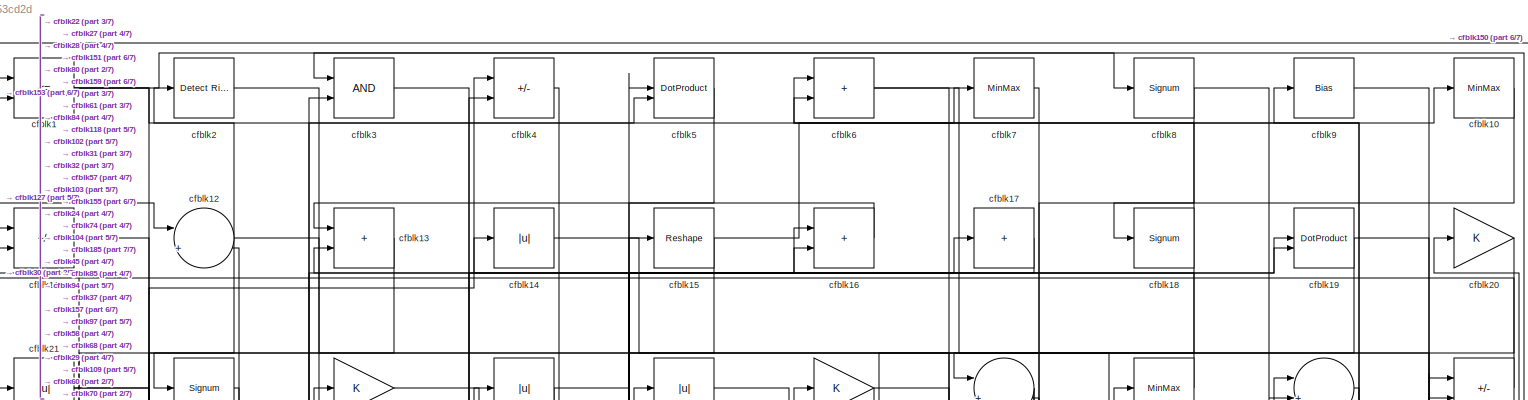
[diagram: root canvas - part 1/7, full width, top band]
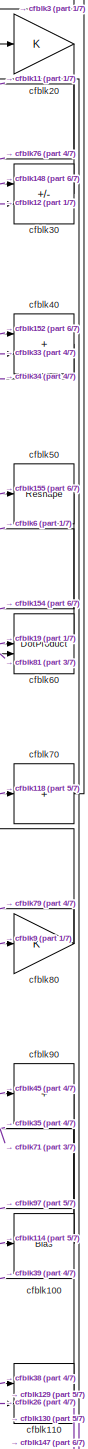
[diagram: root canvas - part 2/7, top right region]
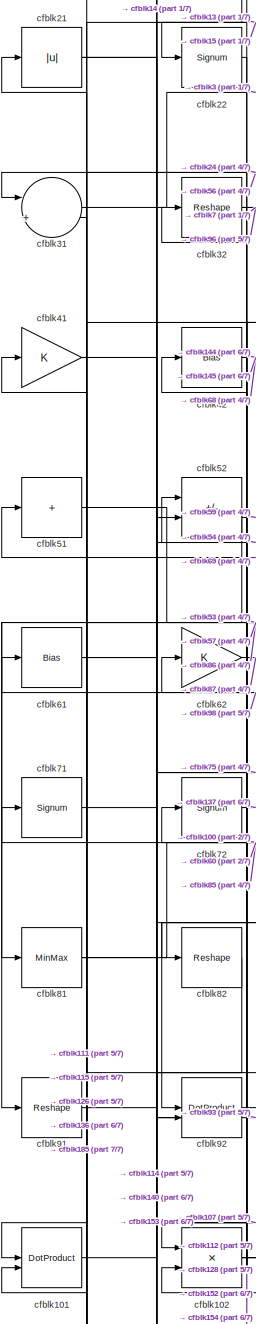
[diagram: root canvas - part 3/7, middle left region]
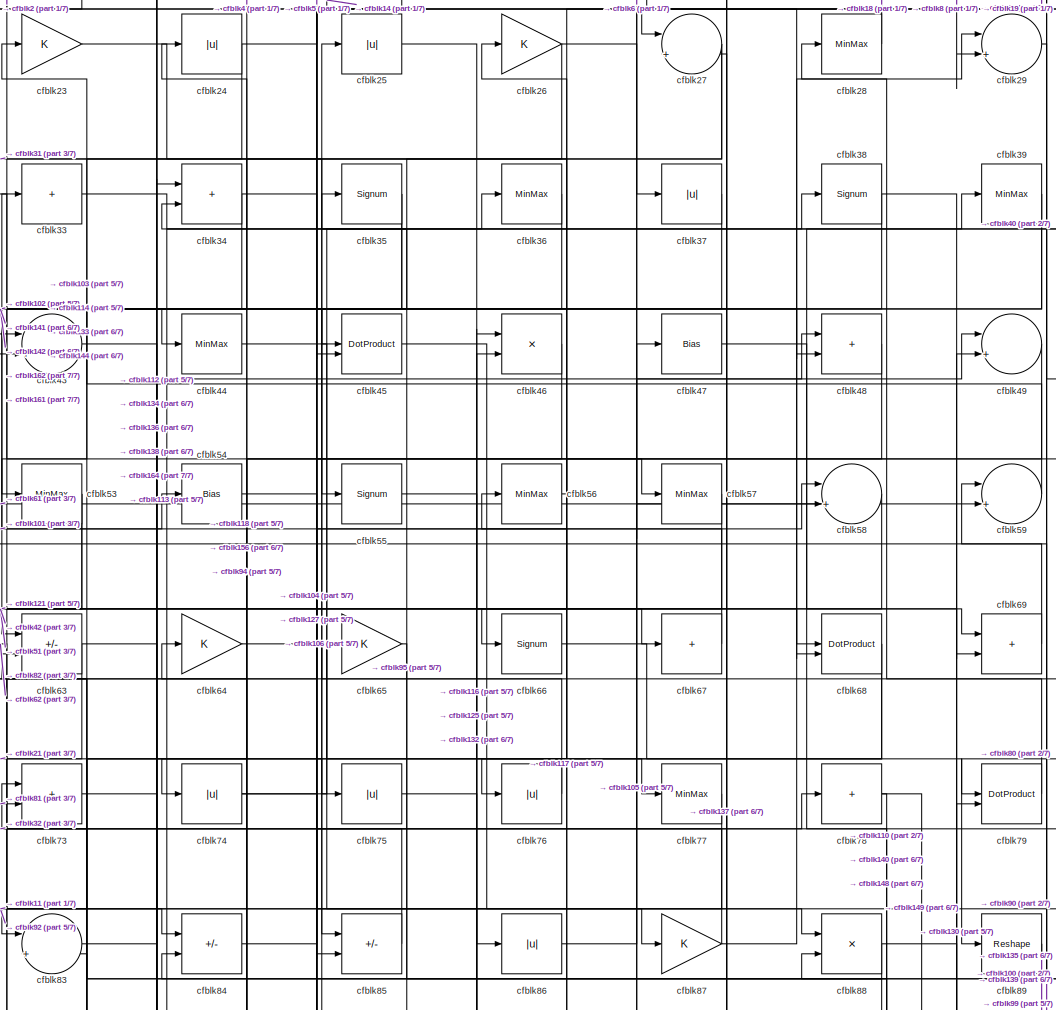
[diagram: root canvas - part 4/7, top center region]
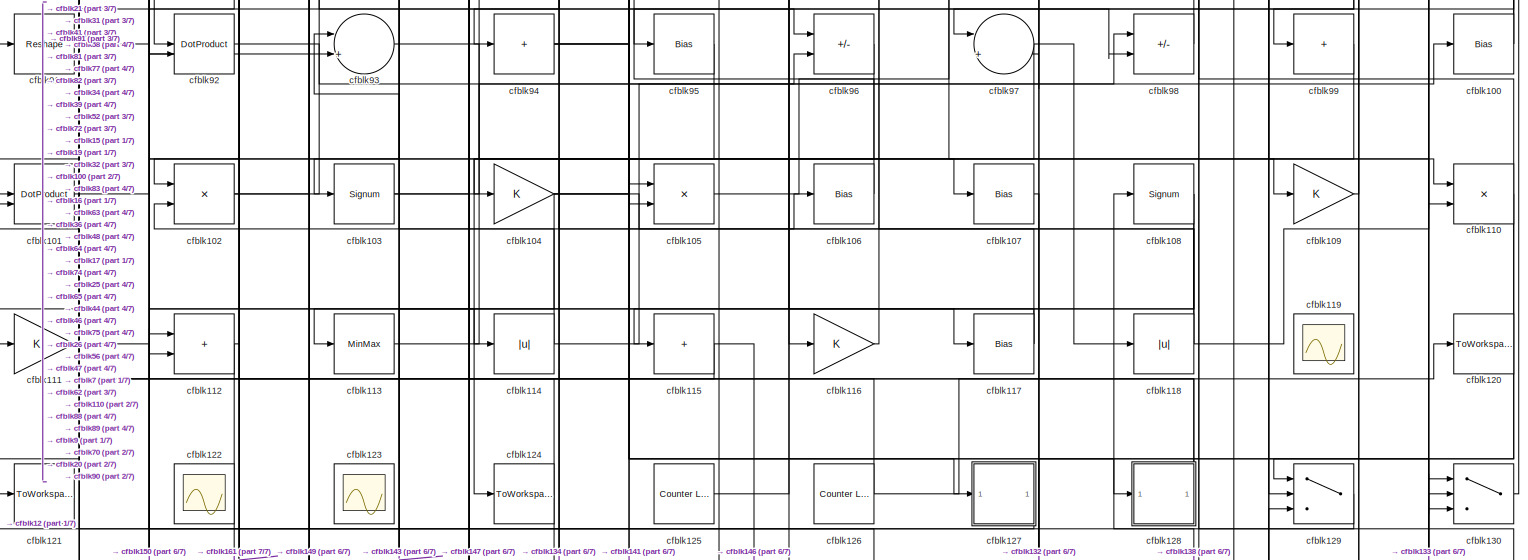
[diagram: root canvas - part 5/7, full width, middle band]
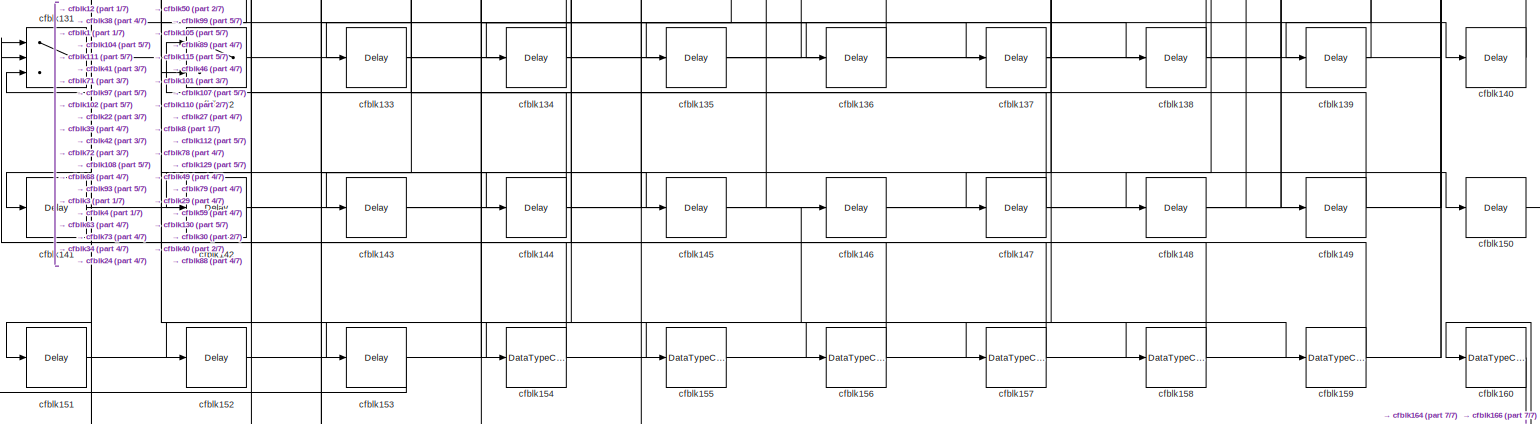
[diagram: root canvas - part 6/7, full width, bottom band]
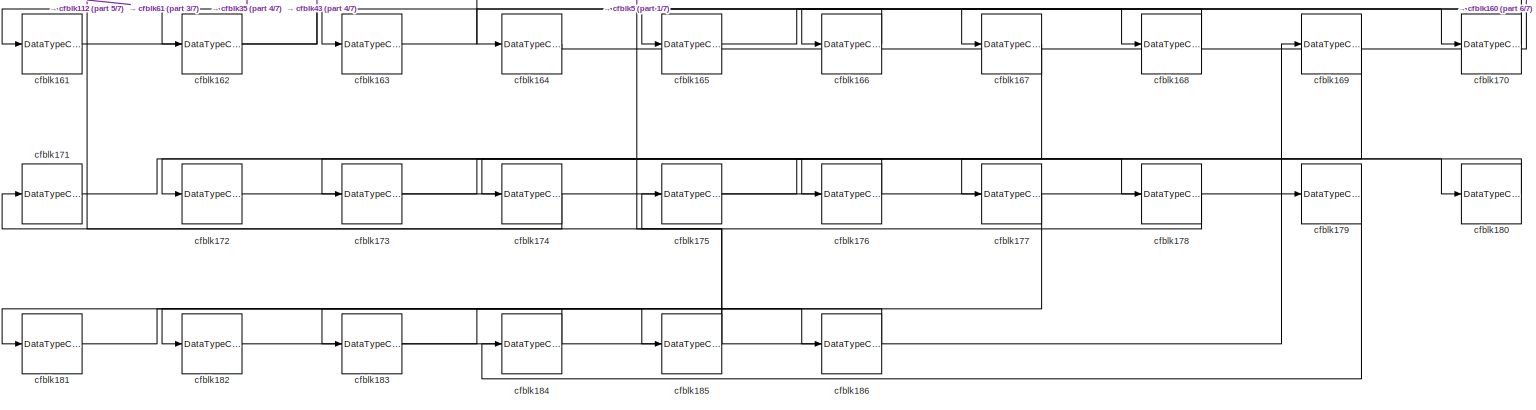
[diagram: root canvas - part 7/7, full width, bottom band]
MODEL slx_8042b253cd2d
KIND model
CONFIG AbsTol = auto
CONFIG EnableMultiTasking = off
CONFIG FixedStep = auto
CONFIG MaxStep = auto
CONFIG MinStep = auto
CONFIG RelTol = 1e-3
CONFIG SampleTimeConstraint = Unconstrained
CONFIG SolverName = VariableStepAuto
CONFIG StartTime = 0.0
CONFIG StopTime = 10.0
BLOCK [RelationalOperator] cfblk1
  InputSameDT = off
  Operator = <=
  OutDataTypeStr = boolean
BLOCK [MinMax] cfblk10
BLOCK [Bias] cfblk100
  Bias = 0.0
  SaturateOnIntegerOverflow = off
BLOCK [DotProduct] cfblk101
  OutDataTypeStr = Inherit: Inherit via internal rule
BLOCK [Product] cfblk102
  Inputs = */
  RndMeth = Zero
  SaturateOnIntegerOverflow = on
BLOCK [Signum] cfblk103
BLOCK [Gain] cfblk104
BLOCK [Product] cfblk105
  Inputs = */
  RndMeth = Zero
  SaturateOnIntegerOverflow = on
BLOCK [Bias] cfblk106
  Bias = 0.0
  SaturateOnIntegerOverflow = off
BLOCK [Bias] cfblk107
  Bias = 0.0
  SaturateOnIntegerOverflow = off
BLOCK [Signum] cfblk108
BLOCK [Gain] cfblk109
BLOCK [Sum] cfblk11
  IconShape = rectangular
  Inputs = +-
BLOCK [Product] cfblk110
  Inputs = */
  RndMeth = Zero
  SaturateOnIntegerOverflow = on
BLOCK [Gain] cfblk111
BLOCK [Sum] cfblk112
  IconShape = rectangular
BLOCK [MinMax] cfblk113
BLOCK [Abs] cfblk114
  SaturateOnIntegerOverflow = off
BLOCK [Sum] cfblk115
  IconShape = rectangular
  Inputs = +
BLOCK [Gain] cfblk116
BLOCK [Bias] cfblk117
  Bias = 0.0
  SaturateOnIntegerOverflow = off
BLOCK [Abs] cfblk118
  SaturateOnIntegerOverflow = off
BLOCK [Scope] cfblk119
  Floating = on
  NumInputPorts = 1
  ScopeSpecificationString = Simulink.scopes.TimeScopeBlockCfg('CurrentConfiguration', extmgr.ConfigurationSet(extmgr.Configuration('Core','General UI',true,'FigureColor',[0.156862745098039 0.156862745098039 0.156862745098039]),extmgr.Configuration('Core','Source UI',true),extmgr.Configuration('Sources','WiredSimulink',true,'DataLoggingVariableName','ScopeData1','DataLoggingSaveFormat','StructureWithTime','DataLoggingLimitDat...<+2713ch>  <repeated x3 — deduplicated; at blocks: cfblk119, cfblk122, cfblk123>
BLOCK [Sum] cfblk12
  Inputs = |++
BLOCK [ToWorkspace] cfblk120
  MaxDataPoints = inf
  SampleTime = -1
  SaveFormat = Timeseries
  VariableName = simout
BLOCK [ToWorkspace] cfblk121
  MaxDataPoints = inf
  SampleTime = -1
  SaveFormat = Timeseries
  VariableName = simout
BLOCK [Scope] cfblk122
  Floating = on
  NumInputPorts = 1
BLOCK [Scope] cfblk123
  Floating = on
  NumInputPorts = 1
BLOCK [ToWorkspace] cfblk124
  MaxDataPoints = inf
  SampleTime = -1
  SaveFormat = Timeseries
  VariableName = simout
BLOCK [Reference] cfblk125  REF=hdlsllib/Sources/Counter
Limited
  SourceBlock = hdlsllib/Sources/Counter\nLimited
  SourceType = Counter Limited
BLOCK [Reference] cfblk126  REF=hdlsllib/Sources/Counter
Limited
  SourceBlock = hdlsllib/Sources/Counter\nLimited
  SourceType = Counter Limited
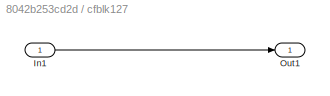
BLOCK [SubSystem] cfblk127
  LibrarySourceBlock = hdlsllib/Ports &\nSubsystems/Subsystem
BLOCK [Inport] cfblk127/In1
BLOCK [Outport] cfblk127/Out1
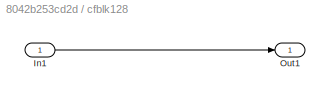
BLOCK [SubSystem] cfblk128
  LibrarySourceBlock = hdlsllib/Ports &\nSubsystems/Subsystem
BLOCK [Inport] cfblk128/In1
BLOCK [Outport] cfblk128/Out1
BLOCK [Switch] cfblk129
  InputSameDT = off
  SaturateOnIntegerOverflow = off
BLOCK [Sum] cfblk13
  IconShape = rectangular
BLOCK [Switch] cfblk130
  InputSameDT = off
  SaturateOnIntegerOverflow = off
BLOCK [Switch] cfblk131
  InputSameDT = off
  SaturateOnIntegerOverflow = off
BLOCK [Switch] cfblk132
  InputSameDT = off
  SaturateOnIntegerOverflow = off
BLOCK [Delay] cfblk133
  InputPortMap = u0
  SampleTime = 1
BLOCK [Delay] cfblk134
  InputPortMap = u0
  SampleTime = 1
BLOCK [Delay] cfblk135
  InputPortMap = u0
  SampleTime = 1
BLOCK [Delay] cfblk136
  InputPortMap = u0
  SampleTime = 1
BLOCK [Delay] cfblk137
  InputPortMap = u0
  SampleTime = 1
BLOCK [Delay] cfblk138
  InputPortMap = u0
  SampleTime = 1
BLOCK [Delay] cfblk139
  InputPortMap = u0
  SampleTime = 1
BLOCK [Abs] cfblk14
  SaturateOnIntegerOverflow = off
BLOCK [Delay] cfblk140
  InputPortMap = u0
  SampleTime = 1
BLOCK [Delay] cfblk141
  InputPortMap = u0
  SampleTime = 1
BLOCK [Delay] cfblk142
  InputPortMap = u0
  SampleTime = 1
BLOCK [Delay] cfblk143
  InputPortMap = u0
  SampleTime = 1
BLOCK [Delay] cfblk144
  InputPortMap = u0
  SampleTime = 1
BLOCK [Delay] cfblk145
  InputPortMap = u0
  SampleTime = 1
BLOCK [Delay] cfblk146
  InputPortMap = u0
  SampleTime = 1
BLOCK [Delay] cfblk147
  InputPortMap = u0
  SampleTime = 1
BLOCK [Delay] cfblk148
  InputPortMap = u0
  SampleTime = 1
BLOCK [Delay] cfblk149
  InputPortMap = u0
  SampleTime = 1
BLOCK [Reshape] cfblk15
BLOCK [Delay] cfblk150
  InputPortMap = u0
  SampleTime = 1
BLOCK [Delay] cfblk151
  InputPortMap = u0
  SampleTime = 1
BLOCK [Delay] cfblk152
  InputPortMap = u0
  SampleTime = 1
BLOCK [Delay] cfblk153
  InputPortMap = u0
  SampleTime = 1
BLOCK [DataTypeConversion] cfblk154
  OutDataTypeStr = uint8
  RndMeth = Floor
  SaturateOnIntegerOverflow = off
BLOCK [DataTypeConversion] cfblk155
  OutDataTypeStr = uint8
  RndMeth = Floor
  SaturateOnIntegerOverflow = off
BLOCK [DataTypeConversion] cfblk156
  OutDataTypeStr = uint8
  RndMeth = Floor
  SaturateOnIntegerOverflow = off
BLOCK [DataTypeConversion] cfblk157
  OutDataTypeStr = uint8
  RndMeth = Floor
  SaturateOnIntegerOverflow = off
BLOCK [DataTypeConversion] cfblk158
  OutDataTypeStr = uint8
  RndMeth = Floor
  SaturateOnIntegerOverflow = off
BLOCK [DataTypeConversion] cfblk159
  OutDataTypeStr = uint8
  RndMeth = Floor
  SaturateOnIntegerOverflow = off
BLOCK [Sum] cfblk16
  IconShape = rectangular
BLOCK [DataTypeConversion] cfblk160
  RndMeth = Floor
  SaturateOnIntegerOverflow = off
BLOCK [DataTypeConversion] cfblk161
  OutDataTypeStr = uint8
  RndMeth = Floor
  SaturateOnIntegerOverflow = off
BLOCK [DataTypeConversion] cfblk162
  OutDataTypeStr = uint8
  RndMeth = Floor
  SaturateOnIntegerOverflow = off
BLOCK [DataTypeConversion] cfblk163
  RndMeth = Floor
  SaturateOnIntegerOverflow = off
BLOCK [DataTypeConversion] cfblk164
  OutDataTypeStr = uint8
  RndMeth = Floor
  SaturateOnIntegerOverflow = off
BLOCK [DataTypeConversion] cfblk165
  RndMeth = Floor
  SaturateOnIntegerOverflow = off
BLOCK [DataTypeConversion] cfblk166
  OutDataTypeStr = uint8
  RndMeth = Floor
  SaturateOnIntegerOverflow = off
BLOCK [DataTypeConversion] cfblk167
  RndMeth = Floor
  SaturateOnIntegerOverflow = off
BLOCK [DataTypeConversion] cfblk168
  OutDataTypeStr = uint8
  RndMeth = Floor
  SaturateOnIntegerOverflow = off
BLOCK [DataTypeConversion] cfblk169
  RndMeth = Floor
  SaturateOnIntegerOverflow = off
BLOCK [Sum] cfblk17
  IconShape = rectangular
  Inputs = +
BLOCK [DataTypeConversion] cfblk170
  OutDataTypeStr = uint8
  RndMeth = Floor
  SaturateOnIntegerOverflow = off
BLOCK [DataTypeConversion] cfblk171
  RndMeth = Floor
  SaturateOnIntegerOverflow = off
BLOCK [DataTypeConversion] cfblk172
  OutDataTypeStr = uint8
  RndMeth = Floor
  SaturateOnIntegerOverflow = off
BLOCK [DataTypeConversion] cfblk173
  RndMeth = Floor
  SaturateOnIntegerOverflow = off
BLOCK [DataTypeConversion] cfblk174
  OutDataTypeStr = uint8
  RndMeth = Floor
  SaturateOnIntegerOverflow = off
BLOCK [DataTypeConversion] cfblk175
  RndMeth = Floor
  SaturateOnIntegerOverflow = off
BLOCK [DataTypeConversion] cfblk176
  OutDataTypeStr = uint8
  RndMeth = Floor
  SaturateOnIntegerOverflow = off
BLOCK [DataTypeConversion] cfblk177
  RndMeth = Floor
  SaturateOnIntegerOverflow = off
BLOCK [DataTypeConversion] cfblk178
  OutDataTypeStr = uint8
  RndMeth = Floor
  SaturateOnIntegerOverflow = off
BLOCK [DataTypeConversion] cfblk179
  RndMeth = Floor
  SaturateOnIntegerOverflow = off
BLOCK [Signum] cfblk18
BLOCK [DataTypeConversion] cfblk180
  OutDataTypeStr = uint8
  RndMeth = Floor
  SaturateOnIntegerOverflow = off
BLOCK [DataTypeConversion] cfblk181
  RndMeth = Floor
  SaturateOnIntegerOverflow = off
BLOCK [DataTypeConversion] cfblk182
  OutDataTypeStr = uint8
  RndMeth = Floor
  SaturateOnIntegerOverflow = off
BLOCK [DataTypeConversion] cfblk183
  RndMeth = Floor
  SaturateOnIntegerOverflow = off
BLOCK [DataTypeConversion] cfblk184
  OutDataTypeStr = uint8
  RndMeth = Floor
  SaturateOnIntegerOverflow = off
BLOCK [DataTypeConversion] cfblk185
  RndMeth = Floor
  SaturateOnIntegerOverflow = off
BLOCK [DataTypeConversion] cfblk186
  OutDataTypeStr = uint8
  RndMeth = Floor
  SaturateOnIntegerOverflow = off
BLOCK [DotProduct] cfblk19
  OutDataTypeStr = Inherit: Inherit via internal rule
BLOCK [Reference] cfblk2  REF=hdlsllib/Logic and Bit
Operations/Detect Rise
Nonnegative
  SourceBlock = hdlsllib/Logic and Bit\nOperations/Detect Rise\nNonnegative
  SourceType = Detect Rise Nonnegative
BLOCK [Gain] cfblk20
BLOCK [Abs] cfblk21
  SaturateOnIntegerOverflow = off
BLOCK [Signum] cfblk22
BLOCK [Gain] cfblk23
BLOCK [Abs] cfblk24
  SaturateOnIntegerOverflow = off
BLOCK [Abs] cfblk25
  SaturateOnIntegerOverflow = off
BLOCK [Gain] cfblk26
BLOCK [Sum] cfblk27
  Inputs = |++
BLOCK [MinMax] cfblk28
BLOCK [Sum] cfblk29
  Inputs = |++
BLOCK [Logic] cfblk3
  AllPortsSameDT = off
  OutDataTypeStr = boolean
BLOCK [Sum] cfblk30
  IconShape = rectangular
  Inputs = +-
BLOCK [Sum] cfblk31
  Inputs = |++
BLOCK [Reshape] cfblk32
BLOCK [Sum] cfblk33
  IconShape = rectangular
  Inputs = +
BLOCK [Sum] cfblk34
  IconShape = rectangular
BLOCK [Signum] cfblk35
BLOCK [MinMax] cfblk36
BLOCK [Abs] cfblk37
  SaturateOnIntegerOverflow = off
BLOCK [Signum] cfblk38
BLOCK [MinMax] cfblk39
BLOCK [Sum] cfblk4
  IconShape = rectangular
  Inputs = +-
BLOCK [Sum] cfblk40
  IconShape = rectangular
BLOCK [Gain] cfblk41
BLOCK [Bias] cfblk42
  Bias = 0.0
  SaturateOnIntegerOverflow = off
BLOCK [Sum] cfblk43
  Inputs = |++
BLOCK [MinMax] cfblk44
BLOCK [DotProduct] cfblk45
  OutDataTypeStr = Inherit: Inherit via internal rule
BLOCK [Product] cfblk46
  Inputs = */
  RndMeth = Zero
  SaturateOnIntegerOverflow = on
BLOCK [Bias] cfblk47
  Bias = 0.0
  SaturateOnIntegerOverflow = off
BLOCK [Sum] cfblk48
  IconShape = rectangular
BLOCK [Sum] cfblk49
  Inputs = |++
BLOCK [DotProduct] cfblk5
  OutDataTypeStr = Inherit: Inherit via internal rule
BLOCK [Reshape] cfblk50
BLOCK [Sum] cfblk51
  IconShape = rectangular
  Inputs = +
BLOCK [Sum] cfblk52
  IconShape = rectangular
  Inputs = +-
BLOCK [MinMax] cfblk53
BLOCK [Bias] cfblk54
  Bias = 0.0
  SaturateOnIntegerOverflow = off
BLOCK [Signum] cfblk55
BLOCK [MinMax] cfblk56
BLOCK [MinMax] cfblk57
BLOCK [Sum] cfblk58
  Inputs = |++
BLOCK [Sum] cfblk59
  Inputs = |++
BLOCK [Sum] cfblk6
  IconShape = rectangular
BLOCK [DotProduct] cfblk60
  OutDataTypeStr = Inherit: Inherit via internal rule
BLOCK [Bias] cfblk61
  Bias = 0.0
  SaturateOnIntegerOverflow = off
BLOCK [Gain] cfblk62
BLOCK [Sum] cfblk63
  IconShape = rectangular
  Inputs = +-
BLOCK [Gain] cfblk64
BLOCK [Gain] cfblk65
BLOCK [Signum] cfblk66
BLOCK [Sum] cfblk67
  IconShape = rectangular
  Inputs = +
BLOCK [DotProduct] cfblk68
  OutDataTypeStr = Inherit: Inherit via internal rule
BLOCK [Sum] cfblk69
  IconShape = rectangular
BLOCK [MinMax] cfblk7
BLOCK [Sum] cfblk70
  IconShape = rectangular
  Inputs = +
BLOCK [Signum] cfblk71
BLOCK [Signum] cfblk72
BLOCK [Sum] cfblk73
  IconShape = rectangular
BLOCK [Abs] cfblk74
  SaturateOnIntegerOverflow = off
BLOCK [Abs] cfblk75
  SaturateOnIntegerOverflow = off
BLOCK [Abs] cfblk76
  SaturateOnIntegerOverflow = off
BLOCK [MinMax] cfblk77
BLOCK [Sum] cfblk78
  IconShape = rectangular
  Inputs = +
BLOCK [DotProduct] cfblk79
  OutDataTypeStr = Inherit: Inherit via internal rule
BLOCK [Signum] cfblk8
BLOCK [Gain] cfblk80
BLOCK [MinMax] cfblk81
BLOCK [Reshape] cfblk82
BLOCK [Sum] cfblk83
  Inputs = |++
BLOCK [Sum] cfblk84
  IconShape = rectangular
  Inputs = +-
BLOCK [Sum] cfblk85
  IconShape = rectangular
  Inputs = +-
BLOCK [Abs] cfblk86
  SaturateOnIntegerOverflow = off
BLOCK [Gain] cfblk87
BLOCK [Product] cfblk88
  Inputs = */
  RndMeth = Zero
  SaturateOnIntegerOverflow = on
BLOCK [Reshape] cfblk89
BLOCK [Bias] cfblk9
  Bias = 0.0
  SaturateOnIntegerOverflow = off
BLOCK [Sum] cfblk90
  IconShape = rectangular
  Inputs = +
BLOCK [Reshape] cfblk91
BLOCK [DotProduct] cfblk92
  OutDataTypeStr = Inherit: Inherit via internal rule
BLOCK [Sum] cfblk93
  Inputs = |++
BLOCK [Sum] cfblk94
  IconShape = rectangular
  Inputs = +
BLOCK [Bias] cfblk95
  Bias = 0.0
  SaturateOnIntegerOverflow = off
BLOCK [Sum] cfblk96
  IconShape = rectangular
  Inputs = +-
BLOCK [Sum] cfblk97
  Inputs = |++
BLOCK [Sum] cfblk98
  IconShape = rectangular
  Inputs = +-
BLOCK [Sum] cfblk99
  IconShape = rectangular
  Inputs = +
NET cfblk100:1 -> cfblk35:1, cfblk71:1
LINE cfblk101:1 -> cfblk54:1
NET cfblk102:1 -> cfblk15:1, cfblk19:2
NET cfblk103:1 -> cfblk16:1, cfblk98:1
NET cfblk104:1 -> cfblk106:1, cfblk132:3, cfblk17:1, cfblk58:1
LINE cfblk105:1 -> cfblk47:1
LINE cfblk106:1 -> cfblk25:1
LINE cfblk107:1 -> cfblk132:1
NET cfblk108:1 -> cfblk115:1, cfblk143:1
LINE cfblk109:1 -> cfblk9:1
LINE cfblk10:1 -> cfblk18:1
NET cfblk110:1 -> cfblk129:1, cfblk147:1, cfblk39:1
LINE cfblk111:1 -> cfblk150:1
NET cfblk112:1 -> cfblk161:1, cfblk72:1
LINE cfblk113:1 -> cfblk36:1
NET cfblk114:1 -> cfblk100:1, cfblk83:2
NET cfblk115:1 -> cfblk146:1, cfblk31:2
LINE cfblk116:1 -> cfblk26:1
NET cfblk117:1 -> cfblk113:1, cfblk56:1
NET cfblk118:1 -> cfblk12:2, cfblk64:1, cfblk70:1
LINE cfblk11:1 -> cfblk84:1
LINE cfblk125:1 -> cfblk46:2
NET cfblk126:1 -> cfblk120:1, cfblk21:1
LINE cfblk127/In1:1 -> cfblk127/Out1:1
LINE cfblk127:1 -> cfblk12:1
LINE cfblk128/In1:1 -> cfblk128/Out1:1
NET cfblk128:1 -> cfblk41:1, cfblk52:1
LINE cfblk129:1 -> cfblk108:1
NET cfblk12:1 -> cfblk151:1, cfblk2:1, cfblk30:2
LINE cfblk130:1 -> cfblk20:1
LINE cfblk131:1 -> cfblk156:1
LINE cfblk132:1 -> cfblk46:1
LINE cfblk133:1 -> cfblk130:2
LINE cfblk134:1 -> cfblk34:1
LINE cfblk135:1 -> cfblk49:2
LINE cfblk136:1 -> cfblk101:2
LINE cfblk137:1 -> cfblk27:2
LINE cfblk138:1 -> cfblk112:1
LINE cfblk139:1 -> cfblk59:1
LINE cfblk13:1 -> cfblk22:1
LINE cfblk140:1 -> cfblk88:2
LINE cfblk141:1 -> cfblk105:1
LINE cfblk142:1 -> cfblk79:2
LINE cfblk143:1 -> cfblk130:1
LINE cfblk144:1 -> cfblk63:2
LINE cfblk145:1 -> cfblk158:1
LINE cfblk146:1 -> cfblk129:3
LINE cfblk147:1 -> cfblk93:1
LINE cfblk148:1 -> cfblk30:1
LINE cfblk149:1 -> cfblk102:2
LINE cfblk14:1 -> cfblk37:1
LINE cfblk150:1 -> cfblk1:1
LINE cfblk151:1 -> cfblk4:2
LINE cfblk152:1 -> cfblk40:1
LINE cfblk153:1 -> cfblk1:2
LINE cfblk154:1 -> cfblk42:1
LINE cfblk155:1 -> cfblk50:1
LINE cfblk156:1 -> cfblk24:1
LINE cfblk157:1 -> cfblk131:1
LINE cfblk158:1 -> cfblk131:2
LINE cfblk159:1 -> cfblk131:3
NET cfblk15:1 -> cfblk10:1, cfblk52:2
LINE cfblk160:1 -> cfblk166:1
LINE cfblk161:1 -> cfblk43:1
LINE cfblk162:1 -> cfblk43:2
LINE cfblk163:1 -> cfblk168:1
LINE cfblk164:1 -> cfblk160:1
LINE cfblk165:1 -> cfblk170:1
LINE cfblk166:1 -> cfblk163:1
LINE cfblk167:1 -> cfblk172:1
LINE cfblk168:1 -> cfblk165:1
LINE cfblk169:1 -> cfblk174:1
LINE cfblk16:1 -> cfblk13:1
LINE cfblk170:1 -> cfblk167:1
LINE cfblk171:1 -> cfblk176:1
LINE cfblk172:1 -> cfblk169:1
LINE cfblk173:1 -> cfblk178:1
LINE cfblk174:1 -> cfblk171:1
LINE cfblk175:1 -> cfblk180:1
LINE cfblk176:1 -> cfblk173:1
LINE cfblk177:1 -> cfblk182:1
LINE cfblk178:1 -> cfblk175:1
LINE cfblk179:1 -> cfblk184:1
LINE cfblk17:1 -> cfblk13:2
LINE cfblk180:1 -> cfblk177:1
LINE cfblk181:1 -> cfblk186:1
LINE cfblk182:1 -> cfblk179:1
LINE cfblk183:1 -> cfblk185:1
LINE cfblk184:1 -> cfblk181:1
NET cfblk185:1 -> cfblk5:1, cfblk61:1
LINE cfblk186:1 -> cfblk183:1
NET cfblk18:1 -> cfblk27:1, cfblk6:2
NET cfblk19:1 -> cfblk45:2, cfblk60:1
NET cfblk1:1 -> cfblk159:1, cfblk5:2, cfblk8:1
LINE cfblk20:1 -> cfblk76:1
NET cfblk21:1 -> cfblk107:1, cfblk75:1
LINE cfblk22:1 -> cfblk152:1
LINE cfblk23:1 -> cfblk85:1
NET cfblk24:1 -> cfblk101:1, cfblk19:1
LINE cfblk25:1 -> cfblk67:1
NET cfblk26:1 -> cfblk110:2, cfblk45:1
NET cfblk27:1 -> cfblk44:1, cfblk53:1
LINE cfblk28:1 -> cfblk4:1
LINE cfblk29:1 -> cfblk139:1
LINE cfblk2:1 -> cfblk57:1
LINE cfblk30:1 -> cfblk11:1
LINE cfblk31:1 -> cfblk3:2
NET cfblk32:1 -> cfblk7:1, cfblk96:1
LINE cfblk33:1 -> cfblk40:2
NET cfblk34:1 -> cfblk102:1, cfblk48:2
NET cfblk35:1 -> cfblk162:1, cfblk63:1
LINE cfblk36:1 -> cfblk103:1
LINE cfblk37:1 -> cfblk55:1
NET cfblk38:1 -> cfblk110:1, cfblk141:1
NET cfblk39:1 -> cfblk142:1, cfblk92:2
LINE cfblk3:1 -> cfblk155:1
LINE cfblk40:1 -> cfblk34:2
NET cfblk41:1 -> cfblk140:1, cfblk93:2
NET cfblk42:1 -> cfblk144:1, cfblk145:1, cfblk68:2
LINE cfblk43:1 -> cfblk164:1
LINE cfblk44:1 -> cfblk116:1
LINE cfblk45:1 -> cfblk90:1
LINE cfblk46:1 -> cfblk105:2
LINE cfblk47:1 -> cfblk69:2
LINE cfblk48:1 -> cfblk94:1
LINE cfblk49:1 -> cfblk66:1
LINE cfblk4:1 -> cfblk74:1
LINE cfblk50:1 -> cfblk154:1
LINE cfblk51:1 -> cfblk86:1
LINE cfblk52:1 -> cfblk91:1
NET cfblk53:1 -> cfblk73:2, cfblk81:1
LINE cfblk54:1 -> cfblk88:1
LINE cfblk55:1 -> cfblk69:1
LINE cfblk56:1 -> cfblk31:1
LINE cfblk57:1 -> cfblk82:1
LINE cfblk58:1 -> cfblk121:1
LINE cfblk59:1 -> cfblk23:1
LINE cfblk5:1 -> cfblk85:2
LINE cfblk60:1 -> cfblk6:1
NET cfblk61:1 -> cfblk14:1, cfblk59:2
LINE cfblk62:1 -> cfblk87:1
NET cfblk63:1 -> cfblk112:2, cfblk136:1
LINE cfblk64:1 -> cfblk77:1
LINE cfblk65:1 -> cfblk95:1
LINE cfblk66:1 -> cfblk89:1
LINE cfblk67:1 -> cfblk33:1
NET cfblk68:1 -> cfblk133:1, cfblk83:1
LINE cfblk69:1 -> cfblk51:1
NET cfblk6:1 -> cfblk58:2, cfblk68:1
LINE cfblk70:1 -> cfblk3:1
LINE cfblk71:1 -> cfblk153:1
LINE cfblk72:1 -> cfblk137:1
LINE cfblk73:1 -> cfblk138:1
NET cfblk74:1 -> cfblk127:1, cfblk38:1
LINE cfblk75:1 -> cfblk117:1
LINE cfblk76:1 -> cfblk65:1
LINE cfblk77:1 -> cfblk92:1
NET cfblk78:1 -> cfblk148:1, cfblk149:1
LINE cfblk79:1 -> cfblk28:1
LINE cfblk7:1 -> cfblk97:2
NET cfblk80:1 -> cfblk11:2, cfblk79:1
NET cfblk81:1 -> cfblk114:1, cfblk60:2
LINE cfblk82:1 -> cfblk111:1
LINE cfblk83:1 -> cfblk49:1
LINE cfblk84:1 -> cfblk78:1
LINE cfblk85:1 -> cfblk32:1
LINE cfblk86:1 -> cfblk48:1
NET cfblk87:1 -> cfblk29:1, cfblk73:1
NET cfblk88:1 -> cfblk130:3, cfblk84:2
NET cfblk89:1 -> cfblk135:1, cfblk99:1
NET cfblk8:1 -> cfblk157:1, cfblk29:2
LINE cfblk90:1 -> cfblk97:1
LINE cfblk91:1 -> cfblk98:2
LINE cfblk92:1 -> cfblk96:2
LINE cfblk93:1 -> cfblk109:1
NET cfblk94:1 -> cfblk128:1, cfblk129:2, cfblk16:2
LINE cfblk95:1 -> cfblk104:1
LINE cfblk96:1 -> cfblk124:1
NET cfblk97:1 -> cfblk118:1, cfblk132:2
LINE cfblk98:1 -> cfblk62:1
LINE cfblk99:1 -> cfblk134:1
LINE cfblk9:1 -> cfblk80:1
note: NET lines group one-source signal fan-out (src -> all destinations, sorted); 1:1 wires keep LINE
